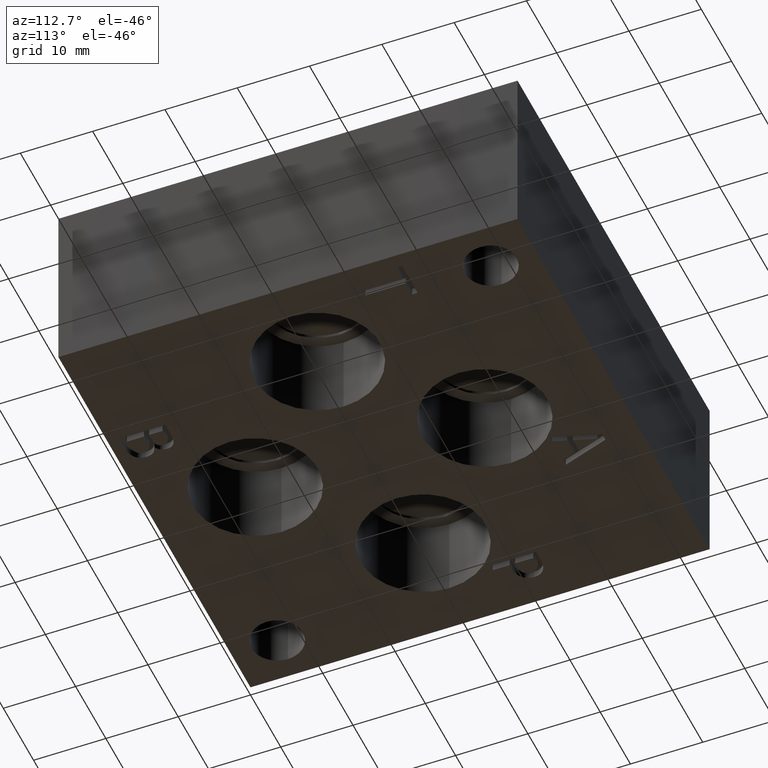
[diagram: clean part render]
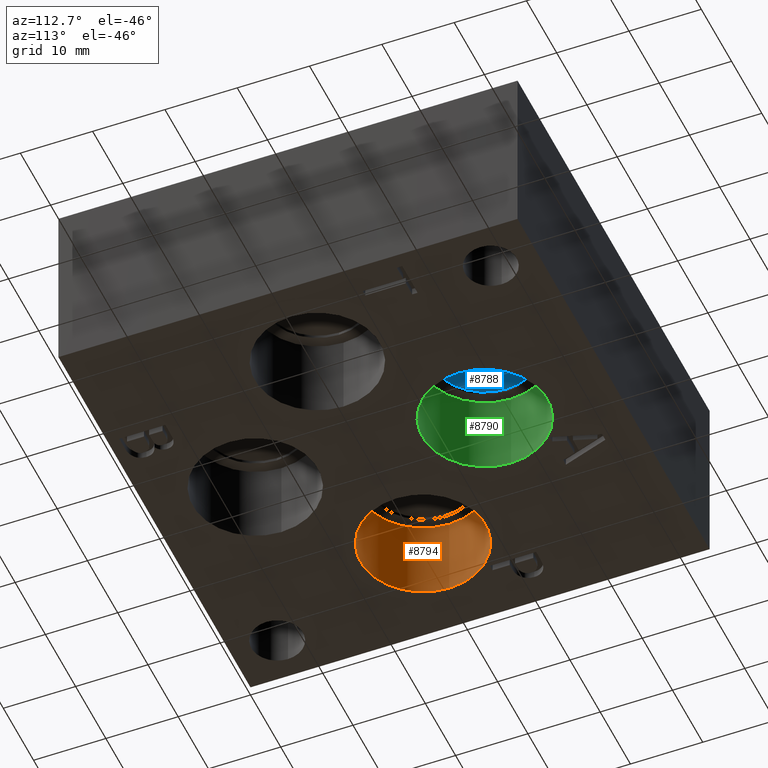
[diagram: same view with three faces highlighted in distinct colors, each labeled with its STEP entity id]
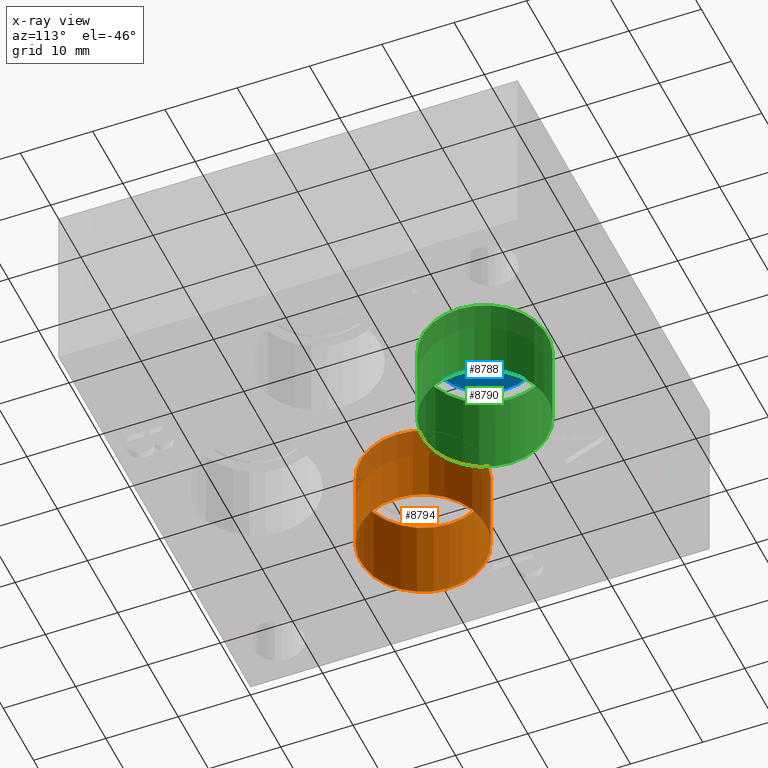
[diagram: x-ray of the same camera — body ghosted, the three highlighted faces saturated]
A machine part, auxiliary view with three faces highlighted in distinct colors.
The next image is the same camera in x-ray (body ghosted, the three faces saturated) — at least one of them is partly hidden behind the body in this view.
Their STEP definitions:

[orange] entity #8794 — the highlighted cylindrical surface (bore or boss wall) has radius 8.6487 mm, axis along (0, 0, -1).
#16=CYLINDRICAL_SURFACE('',#9142,8.6487);
#54=CIRCLE('',#9085,8.6487);
#55=CIRCLE('',#9086,8.6487);
#69=CIRCLE('',#9139,8.6487);
#70=CIRCLE('',#9140,8.6487);
#879=FACE_OUTER_BOUND('',#1371,.T.);
#1371=EDGE_LOOP('',(#7636,#7637,#7638,#7639,#7640,#7641));
#2255=LINE('',#14913,#3111);
#3111=VECTOR('',#10651,8.6487);
#4081=VERTEX_POINT('',#14574);
#4082=VERTEX_POINT('',#14575);
#4159=VERTEX_POINT('',#14906);
#4160=VERTEX_POINT('',#14907);
#5230=EDGE_CURVE('',#4081,#4082,#54,.T.);
#5231=EDGE_CURVE('',#4082,#4081,#55,.T.);
#5345=EDGE_CURVE('',#4159,#4160,#69,.T.);
#5346=EDGE_CURVE('',#4160,#4159,#70,.T.);
#5348=EDGE_CURVE('',#4082,#4160,#2255,.T.);
#7636=ORIENTED_EDGE('',*,*,#5230,.F.);
#7637=ORIENTED_EDGE('',*,*,#5231,.F.);
#7638=ORIENTED_EDGE('',*,*,#5348,.T.);
#7639=ORIENTED_EDGE('',*,*,#5345,.F.);
#7640=ORIENTED_EDGE('',*,*,#5346,.F.);
#7641=ORIENTED_EDGE('',*,*,#5348,.F.);
#8794=ADVANCED_FACE('',(#879),#16,.F.);
#9085=AXIS2_PLACEMENT_3D('',#14576,#10447,#10448);
#9086=AXIS2_PLACEMENT_3D('',#14577,#10449,#10450);
#9139=AXIS2_PLACEMENT_3D('',#14908,#10643,#10644);
#9140=AXIS2_PLACEMENT_3D('',#14909,#10645,#10646);
#9142=AXIS2_PLACEMENT_3D('',#14912,#10649,#10650);
#10447=DIRECTION('center_axis',(0.,0.,1.));
#10448=DIRECTION('ref_axis',(1.,0.,0.));
#10449=DIRECTION('center_axis',(0.,0.,1.));
#10450=DIRECTION('ref_axis',(1.,0.,0.));
#10643=DIRECTION('center_axis',(0.,0.,-1.));
#10644=DIRECTION('ref_axis',(1.,0.,0.));
#10645=DIRECTION('center_axis',(0.,0.,-1.));
#10646=DIRECTION('ref_axis',(1.,0.,0.));
#10649=DIRECTION('center_axis',(0.,0.,-1.));
#10650=DIRECTION('ref_axis',(1.,0.,0.));
#10651=DIRECTION('',(0.,0.,1.));
#14574=CARTESIAN_POINT('',(23.7363,30.1752,0.));
#14575=CARTESIAN_POINT('',(6.4389,30.1752,0.));
#14576=CARTESIAN_POINT('Origin',(15.0876,30.1752,0.));
#14577=CARTESIAN_POINT('Origin',(15.0876,30.1752,0.));
#14906=CARTESIAN_POINT('',(23.7363,30.1752,11.7348));
#14907=CARTESIAN_POINT('',(6.4389,30.1752,11.7348));
#14908=CARTESIAN_POINT('Origin',(15.0876,30.1752,11.7348));
#14909=CARTESIAN_POINT('Origin',(15.0876,30.1752,11.7348));
#14912=CARTESIAN_POINT('Origin',(15.0876,30.1752,5.8674));
#14913=CARTESIAN_POINT('',(6.4389,30.1752,5.8674));

[blue] entity #8788 — the highlighted conical surface has half-angle 60 deg.
#39=CONICAL_SURFACE('',#9126,3.57505,1.0471975511966);
#62=CIRCLE('',#9127,7.1501);
#63=CIRCLE('',#9128,7.1501);
#873=FACE_OUTER_BOUND('',#1363,.T.);
#1363=EDGE_LOOP('',(#7611,#7612,#7613,#7614));
#2251=LINE('',#14885,#3107);
#3107=VECTOR('',#10617,3.57505);
#4150=VERTEX_POINT('',#14881);
#4151=VERTEX_POINT('',#14882);
#4152=VERTEX_POINT('',#14884);
#5334=EDGE_CURVE('',#4150,#4151,#62,.T.);
#5335=EDGE_CURVE('',#4151,#4152,#2251,.T.);
#5336=EDGE_CURVE('',#4151,#4150,#63,.T.);
#7611=ORIENTED_EDGE('',*,*,#5334,.T.);
#7612=ORIENTED_EDGE('',*,*,#5335,.T.);
#7613=ORIENTED_EDGE('',*,*,#5335,.F.);
#7614=ORIENTED_EDGE('',*,*,#5336,.T.);
#8788=ADVANCED_FACE('',(#873),#39,.F.);
#9126=AXIS2_PLACEMENT_3D('',#14880,#10613,#10614);
#9127=AXIS2_PLACEMENT_3D('',#14883,#10615,#10616);
#9128=AXIS2_PLACEMENT_3D('',#14886,#10618,#10619);
#10613=DIRECTION('center_axis',(0.,0.,-1.));
#10614=DIRECTION('ref_axis',(1.,0.,0.));
#10615=DIRECTION('center_axis',(0.,0.,-1.));
#10616=DIRECTION('ref_axis',(1.,0.,0.));
#10617=DIRECTION('',(0.866025403784439,-1.06057523872491E-16,0.5));
#10618=DIRECTION('center_axis',(0.,0.,-1.));
#10619=DIRECTION('ref_axis',(1.,0.,0.));
#14880=CARTESIAN_POINT('Origin',(32.5374,46.0248,14.2116660798664));
#14881=CARTESIAN_POINT('',(39.6875,46.0248,12.14761));
#14882=CARTESIAN_POINT('',(25.3873,46.0248,12.14761));
#14883=CARTESIAN_POINT('Origin',(32.5374,46.0248,12.14761));
#14884=CARTESIAN_POINT('',(32.5374,46.0248,16.2757221597327));
#14885=CARTESIAN_POINT('',(28.96235,46.0248,14.2116660798664));
#14886=CARTESIAN_POINT('Origin',(32.5374,46.0248,12.14761));

[green] entity #8790 — the highlighted cylindrical surface (bore or boss wall) has radius 8.6487 mm, axis along (0, 0, -1).
#14=CYLINDRICAL_SURFACE('',#9133,8.6487);
#52=CIRCLE('',#9083,8.6487);
#53=CIRCLE('',#9084,8.6487);
#64=CIRCLE('',#9130,8.6487);
#65=CIRCLE('',#9131,8.6487);
#875=FACE_OUTER_BOUND('',#1366,.T.);
#1366=EDGE_LOOP('',(#7618,#7619,#7620,#7621,#7622,#7623));
#2252=LINE('',#14895,#3108);
#3108=VECTOR('',#10630,8.6487);
#4079=VERTEX_POINT('',#14570);
#4080=VERTEX_POINT('',#14571);
#4153=VERTEX_POINT('',#14888);
#4154=VERTEX_POINT('',#14889);
#5228=EDGE_CURVE('',#4079,#4080,#52,.T.);
#5229=EDGE_CURVE('',#4080,#4079,#53,.T.);
#5337=EDGE_CURVE('',#4153,#4154,#64,.T.);
#5338=EDGE_CURVE('',#4154,#4153,#65,.T.);
#5340=EDGE_CURVE('',#4080,#4154,#2252,.T.);
#7618=ORIENTED_EDGE('',*,*,#5228,.F.);
#7619=ORIENTED_EDGE('',*,*,#5229,.F.);
#7620=ORIENTED_EDGE('',*,*,#5340,.T.);
#7621=ORIENTED_EDGE('',*,*,#5337,.F.);
#7622=ORIENTED_EDGE('',*,*,#5338,.F.);
#7623=ORIENTED_EDGE('',*,*,#5340,.F.);
#8790=ADVANCED_FACE('',(#875),#14,.F.);
#9083=AXIS2_PLACEMENT_3D('',#14572,#10443,#10444);
#9084=AXIS2_PLACEMENT_3D('',#14573,#10445,#10446);
#9130=AXIS2_PLACEMENT_3D('',#14890,#10622,#10623);
#9131=AXIS2_PLACEMENT_3D('',#14891,#10624,#10625);
#9133=AXIS2_PLACEMENT_3D('',#14894,#10628,#10629);
#10443=DIRECTION('center_axis',(0.,0.,1.));
#10444=DIRECTION('ref_axis',(1.,0.,0.));
#10445=DIRECTION('center_axis',(0.,0.,1.));
#10446=DIRECTION('ref_axis',(1.,0.,0.));
#10622=DIRECTION('center_axis',(0.,0.,-1.));
#10623=DIRECTION('ref_axis',(1.,0.,0.));
#10624=DIRECTION('center_axis',(0.,0.,-1.));
#10625=DIRECTION('ref_axis',(1.,0.,0.));
#10628=DIRECTION('center_axis',(0.,0.,-1.));
#10629=DIRECTION('ref_axis',(1.,0.,0.));
#10630=DIRECTION('',(0.,0.,1.));
#14570=CARTESIAN_POINT('',(41.1861,46.0248,0.));
#14571=CARTESIAN_POINT('',(23.8887,46.0248,0.));
#14572=CARTESIAN_POINT('Origin',(32.5374,46.0248,0.));
#14573=CARTESIAN_POINT('Origin',(32.5374,46.0248,0.));
#14888=CARTESIAN_POINT('',(41.1861,46.0248,11.7348));
#14889=CARTESIAN_POINT('',(23.8887,46.0248,11.7348));
#14890=CARTESIAN_POINT('Origin',(32.5374,46.0248,11.7348));
#14891=CARTESIAN_POINT('Origin',(32.5374,46.0248,11.7348));
#14894=CARTESIAN_POINT('Origin',(32.5374,46.0248,5.8674));
#14895=CARTESIAN_POINT('',(23.8887,46.0248,5.8674));